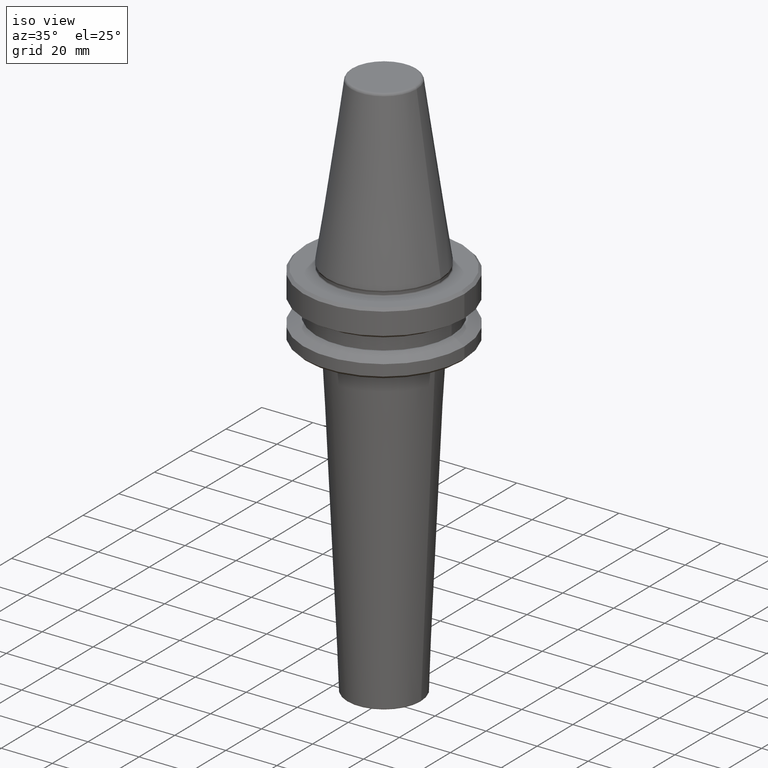
[diagram: clean part render]
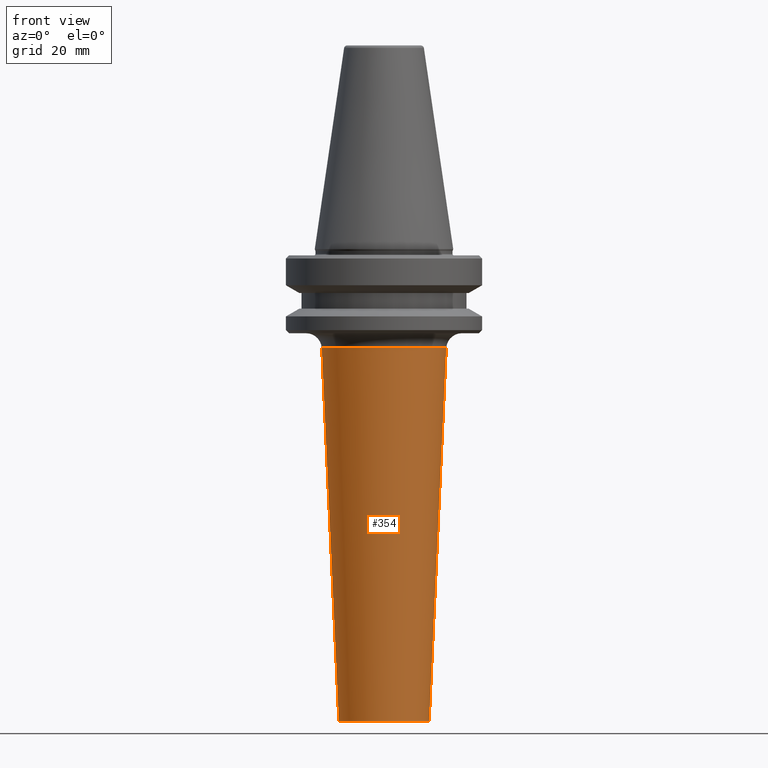
[diagram: tour spotlight — one face highlighted and labeled with its STEP entity id]
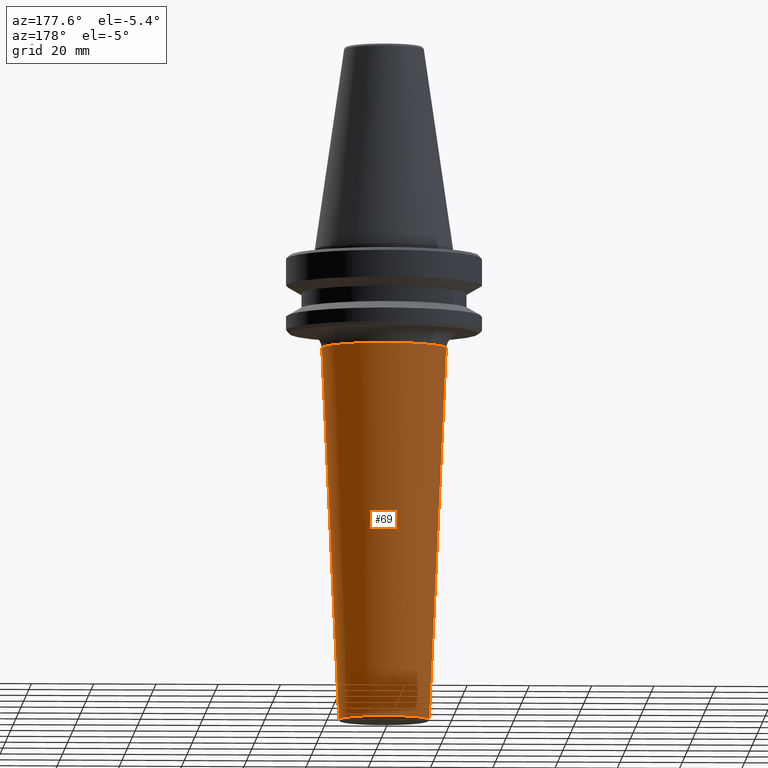
[diagram: tour spotlight — one face highlighted and labeled with its STEP entity id]
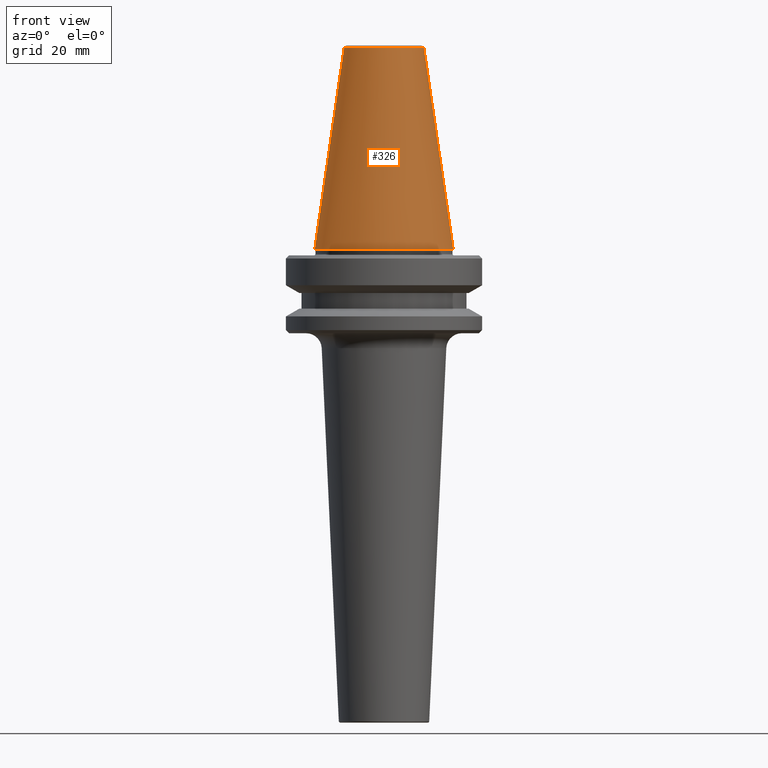
[diagram: tour spotlight — one face highlighted and labeled with its STEP entity id]
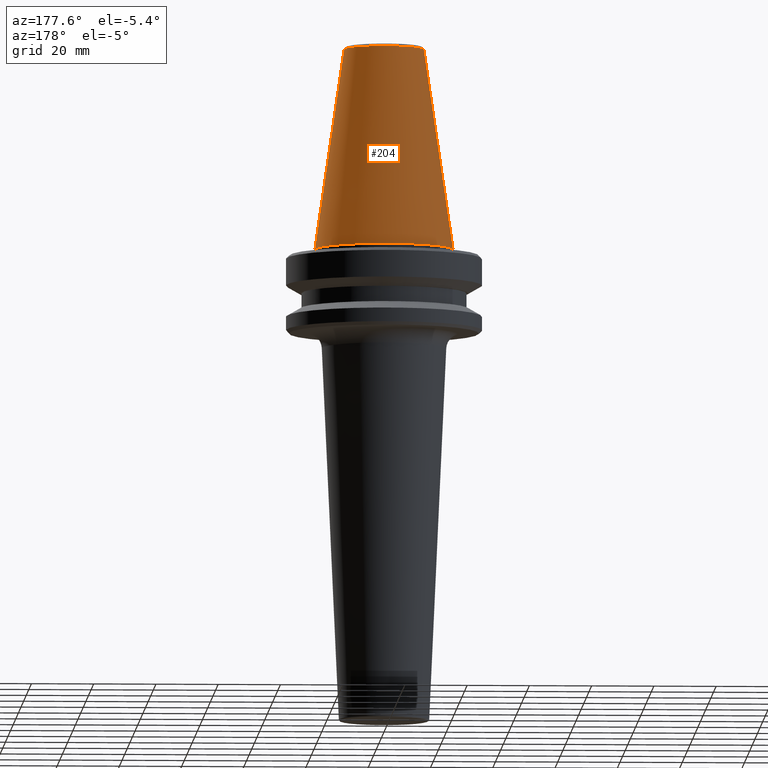
[diagram: tour spotlight — one face highlighted and labeled with its STEP entity id]
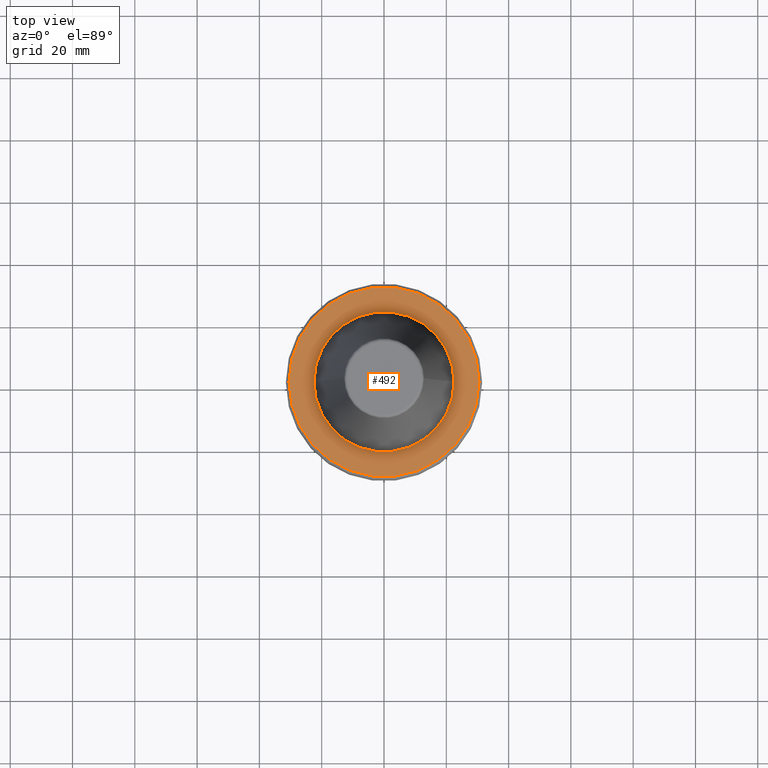
[diagram: tour spotlight — one face highlighted and labeled with its STEP entity id]
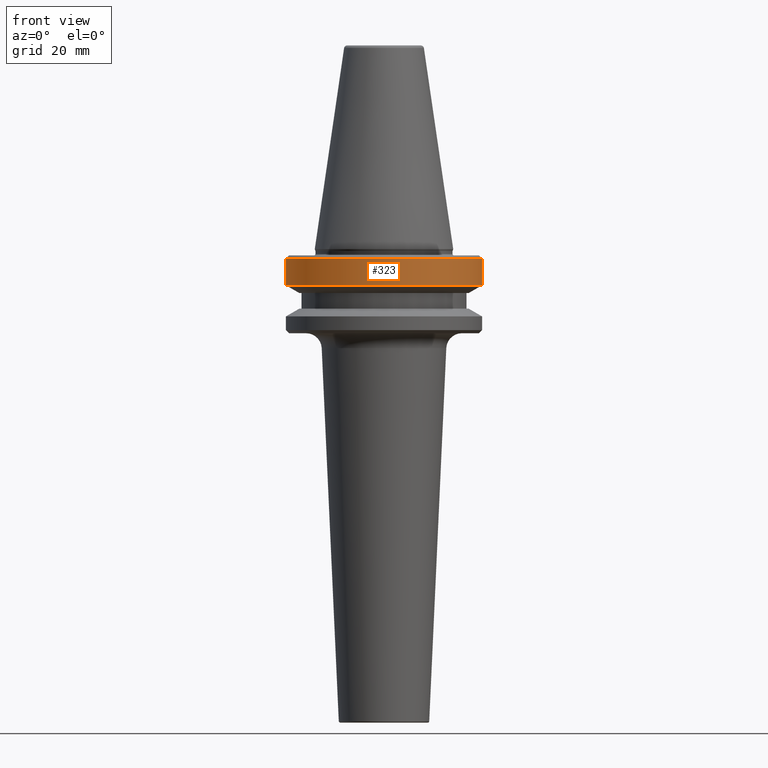
[diagram: tour spotlight — one face highlighted and labeled with its STEP entity id]
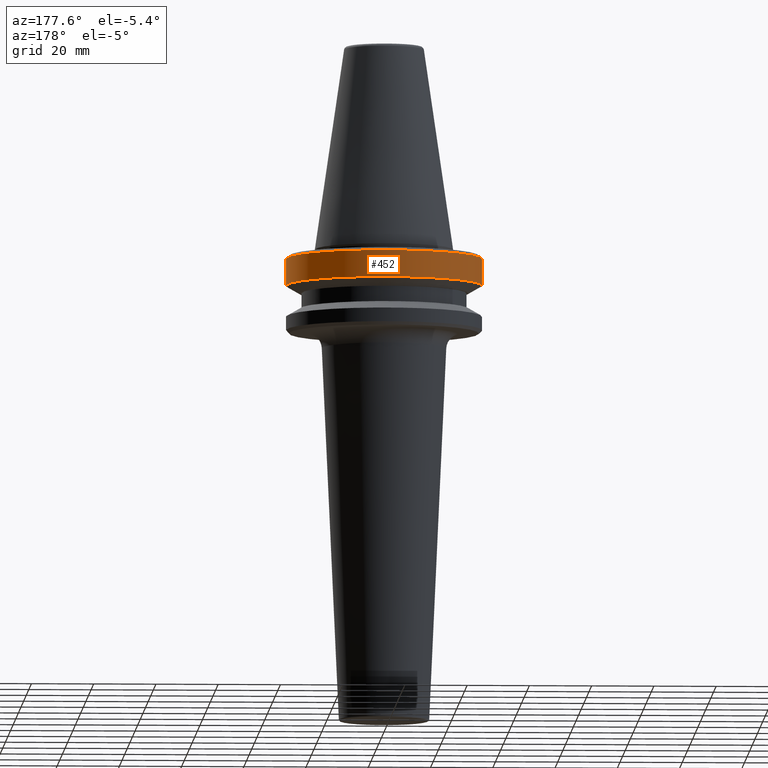
[diagram: tour spotlight — one face highlighted and labeled with its STEP entity id]
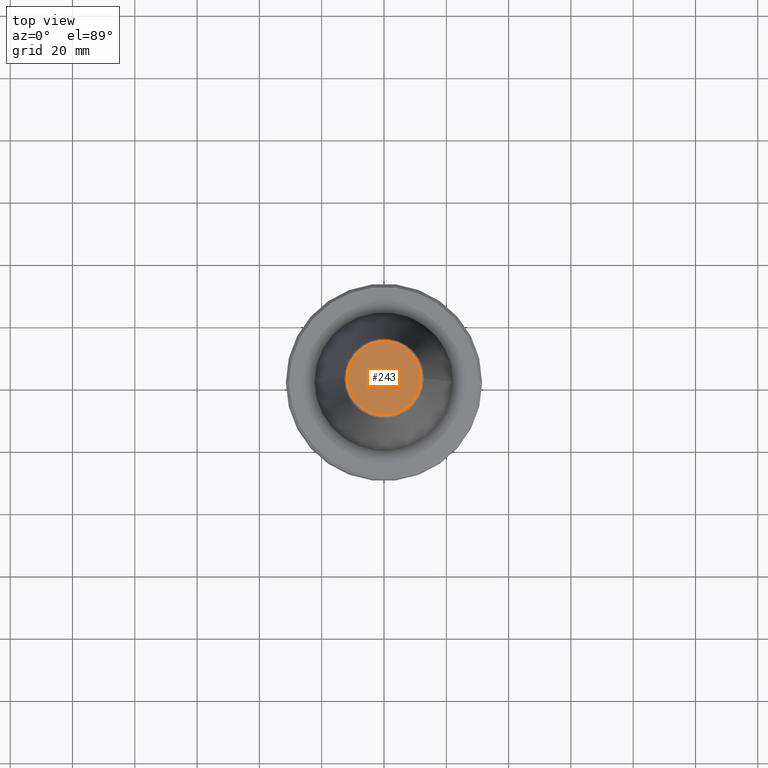
[diagram: tour spotlight — one face highlighted and labeled with its STEP entity id]
A machine part: a face-by-face anatomy tour. The part has 38 B-rep faces; the first image is the clean iso view, then the 8 largest visible faces are spotlighted one at a time (largest first), each with its STEP entity span.

Face 1 — front view, entity #354. In plain terms, the highlighted conical surface has half-angle 2.619 deg.
Definition (entity closure, byte-faithful):
#6 = CONICAL_SURFACE ( 'NONE', #387, 20.00000000000000400, 0.04571435657293276100 ) ;
#29 = EDGE_CURVE ( 'NONE', #379, #769, #158, .T. ) ;
#68 = LINE ( 'NONE', #947, #705 ) ;
#124 = AXIS2_PLACEMENT_3D ( 'NONE', #302, #866, #386 ) ;
#158 = LINE ( 'NONE', #557, #993 ) ;
#167 = EDGE_CURVE ( 'NONE', #769, #469, #745, .T. ) ;
#261 = CARTESIAN_POINT ( 'NONE',  ( -14.52182784840496200, 1.778410999231803200E-015, -216.9228492179622700 ) ) ;
#276 = EDGE_CURVE ( 'NONE', #379, #844, #339, .T. ) ;
#302 = CARTESIAN_POINT ( 'NONE',  ( 0.0000000000000000000, 0.0000000000000000000, -97.17150782046840600 ) ) ;
#339 = CIRCLE ( 'NONE', #1044, 14.52182784840495500 ) ;
#341 = CARTESIAN_POINT ( 'NONE',  ( 0.0000000000000000000, 0.0000000000000000000, -97.17150782046840600 ) ) ;
#354 = ADVANCED_FACE ( 'NONE', ( #694 ), #6, .T. ) ;
#379 = VERTEX_POINT ( 'NONE', #261 ) ;
#386 = DIRECTION ( 'NONE',  ( 1.000000000000000000, 0.0000000000000000000, 0.0000000000000000000 ) ) ;
#387 = AXIS2_PLACEMENT_3D ( 'NONE', #341, #458, #666 ) ;
#388 = DIRECTION ( 'NONE',  ( -0.0000000000000000000, -0.0000000000000000000, 1.000000000000000000 ) ) ;
#397 = DIRECTION ( 'NONE',  ( 0.04569843590791970700, 0.0000000000000000000, 0.9989552807586381500 ) ) ;
#458 = DIRECTION ( 'NONE',  ( -0.0000000000000000000, -0.0000000000000000000, 1.000000000000000000 ) ) ;
#459 = EDGE_LOOP ( 'NONE', ( #466, #823, #991, #704 ) ) ;
#466 = ORIENTED_EDGE ( 'NONE', *, *, #29, .F. ) ;
#469 = VERTEX_POINT ( 'NONE', #729 ) ;
#546 = CARTESIAN_POINT ( 'NONE',  ( -20.00000000000000400, 2.755135445062810000E-015, -97.17150782046840600 ) ) ;
#557 = CARTESIAN_POINT ( 'NONE',  ( -20.00000000000000400, 2.449293598294706900E-015, -97.17150782046840600 ) ) ;
#666 = DIRECTION ( 'NONE',  ( 1.000000000000000000, 0.0000000000000000000, 0.0000000000000000000 ) ) ;
#694 = FACE_OUTER_BOUND ( 'NONE', #459, .T. ) ;
#704 = ORIENTED_EDGE ( 'NONE', *, *, #167, .F. ) ;
#705 = VECTOR ( 'NONE', #397, 1000.000000000000100 ) ;
#707 = EDGE_CURVE ( 'NONE', #844, #469, #68, .T. ) ;
#729 = CARTESIAN_POINT ( 'NONE',  ( 20.00000000000000400, 0.0000000000000000000, -97.17150782046840600 ) ) ;
#745 = CIRCLE ( 'NONE', #124, 20.00000000000000400 ) ;
#750 = CARTESIAN_POINT ( 'NONE',  ( 14.52182784840496200, 0.0000000000000000000, -216.9228492179622700 ) ) ;
#769 = VERTEX_POINT ( 'NONE', #546 ) ;
#823 = ORIENTED_EDGE ( 'NONE', *, *, #276, .T. ) ;
#844 = VERTEX_POINT ( 'NONE', #750 ) ;
#866 = DIRECTION ( 'NONE',  ( -0.0000000000000000000, -0.0000000000000000000, 1.000000000000000000 ) ) ;
#867 = CARTESIAN_POINT ( 'NONE',  ( 0.0000000000000000000, 0.0000000000000000000, -216.9228492179622700 ) ) ;
#878 = DIRECTION ( 'NONE',  ( -0.04569843590791970700, 5.596444326067432800E-018, 0.9989552807586381500 ) ) ;
#940 = DIRECTION ( 'NONE',  ( 1.000000000000000000, 0.0000000000000000000, 0.0000000000000000000 ) ) ;
#947 = CARTESIAN_POINT ( 'NONE',  ( 20.00000000000000400, 0.0000000000000000000, -97.17150782046840600 ) ) ;
#991 = ORIENTED_EDGE ( 'NONE', *, *, #707, .T. ) ;
#993 = VECTOR ( 'NONE', #878, 1000.000000000000100 ) ;
#1044 = AXIS2_PLACEMENT_3D ( 'NONE', #867, #388, #940 ) ;

Face 2 — auxiliary view, entity #69. In plain terms, the highlighted conical surface has half-angle 2.619 deg.
Definition (entity closure, byte-faithful):
#16 = CARTESIAN_POINT ( 'NONE',  ( 0.0000000000000000000, 0.0000000000000000000, -216.9228492179622700 ) ) ;
#29 = EDGE_CURVE ( 'NONE', #379, #769, #158, .T. ) ;
#68 = LINE ( 'NONE', #947, #705 ) ;
#69 = ADVANCED_FACE ( 'NONE', ( #768 ), #739, .T. ) ;
#92 = EDGE_CURVE ( 'NONE', #469, #769, #939, .T. ) ;
#102 = DIRECTION ( 'NONE',  ( 1.000000000000000000, 0.0000000000000000000, 0.0000000000000000000 ) ) ;
#137 = ORIENTED_EDGE ( 'NONE', *, *, #572, .T. ) ;
#158 = LINE ( 'NONE', #557, #993 ) ;
#261 = CARTESIAN_POINT ( 'NONE',  ( -14.52182784840496200, 1.778410999231803200E-015, -216.9228492179622700 ) ) ;
#279 = EDGE_LOOP ( 'NONE', ( #137, #600, #808, #766 ) ) ;
#282 = DIRECTION ( 'NONE',  ( -0.0000000000000000000, -0.0000000000000000000, 1.000000000000000000 ) ) ;
#379 = VERTEX_POINT ( 'NONE', #261 ) ;
#397 = DIRECTION ( 'NONE',  ( 0.04569843590791970700, 0.0000000000000000000, 0.9989552807586381500 ) ) ;
#469 = VERTEX_POINT ( 'NONE', #729 ) ;
#477 = CARTESIAN_POINT ( 'NONE',  ( 0.0000000000000000000, 0.0000000000000000000, -97.17150782046840600 ) ) ;
#533 = AXIS2_PLACEMENT_3D ( 'NONE', #477, #1031, #554 ) ;
#546 = CARTESIAN_POINT ( 'NONE',  ( -20.00000000000000400, 2.755135445062810000E-015, -97.17150782046840600 ) ) ;
#554 = DIRECTION ( 'NONE',  ( 1.000000000000000000, 0.0000000000000000000, 0.0000000000000000000 ) ) ;
#557 = CARTESIAN_POINT ( 'NONE',  ( -20.00000000000000400, 2.449293598294706900E-015, -97.17150782046840600 ) ) ;
#572 = EDGE_CURVE ( 'NONE', #844, #379, #959, .T. ) ;
#600 = ORIENTED_EDGE ( 'NONE', *, *, #29, .T. ) ;
#602 = DIRECTION ( 'NONE',  ( -0.0000000000000000000, -0.0000000000000000000, 1.000000000000000000 ) ) ;
#705 = VECTOR ( 'NONE', #397, 1000.000000000000100 ) ;
#707 = EDGE_CURVE ( 'NONE', #844, #469, #68, .T. ) ;
#729 = CARTESIAN_POINT ( 'NONE',  ( 20.00000000000000400, 0.0000000000000000000, -97.17150782046840600 ) ) ;
#739 = CONICAL_SURFACE ( 'NONE', #533, 20.00000000000000400, 0.04571435657293276100 ) ;
#750 = CARTESIAN_POINT ( 'NONE',  ( 14.52182784840496200, 0.0000000000000000000, -216.9228492179622700 ) ) ;
#766 = ORIENTED_EDGE ( 'NONE', *, *, #707, .F. ) ;
#768 = FACE_OUTER_BOUND ( 'NONE', #279, .T. ) ;
#769 = VERTEX_POINT ( 'NONE', #546 ) ;
#771 = CARTESIAN_POINT ( 'NONE',  ( 0.0000000000000000000, 0.0000000000000000000, -97.17150782046840600 ) ) ;
#806 = AXIS2_PLACEMENT_3D ( 'NONE', #771, #282, #847 ) ;
#808 = ORIENTED_EDGE ( 'NONE', *, *, #92, .F. ) ;
#844 = VERTEX_POINT ( 'NONE', #750 ) ;
#847 = DIRECTION ( 'NONE',  ( 1.000000000000000000, 0.0000000000000000000, 0.0000000000000000000 ) ) ;
#878 = DIRECTION ( 'NONE',  ( -0.04569843590791970700, 5.596444326067432800E-018, 0.9989552807586381500 ) ) ;
#939 = CIRCLE ( 'NONE', #806, 20.00000000000000400 ) ;
#947 = CARTESIAN_POINT ( 'NONE',  ( 20.00000000000000400, 0.0000000000000000000, -97.17150782046840600 ) ) ;
#955 = AXIS2_PLACEMENT_3D ( 'NONE', #16, #602, #102 ) ;
#959 = CIRCLE ( 'NONE', #955, 14.52182784840495500 ) ;
#993 = VECTOR ( 'NONE', #878, 1000.000000000000100 ) ;
#1031 = DIRECTION ( 'NONE',  ( -0.0000000000000000000, -0.0000000000000000000, 1.000000000000000000 ) ) ;

Face 3 — front view, entity #326. In plain terms, the highlighted conical surface has half-angle 8.297 deg.
Definition (entity closure, byte-faithful):
#10 = CARTESIAN_POINT ( 'NONE',  ( 12.81220206925736900, 2.145409868259749100E-015, -0.8556918111122247000 ) ) ;
#15 = VECTOR ( 'NONE', #395, 1000.000000000000000 ) ;
#18 = EDGE_LOOP ( 'NONE', ( #398, #620, #79, #153 ) ) ;
#31 = CONICAL_SURFACE ( 'NONE', #281, 12.81220206925736900, 0.1448138077623198300 ) ;
#37 = VERTEX_POINT ( 'NONE', #658 ) ;
#51 = DIRECTION ( 'NONE',  ( -0.0000000000000000000, -0.0000000000000000000, 1.000000000000000000 ) ) ;
#53 = EDGE_CURVE ( 'NONE', #212, #382, #362, .T. ) ;
#79 = ORIENTED_EDGE ( 'NONE', *, *, #197, .T. ) ;
#115 = FACE_OUTER_BOUND ( 'NONE', #18, .T. ) ;
#153 = ORIENTED_EDGE ( 'NONE', *, *, #807, .T. ) ;
#164 = CARTESIAN_POINT ( 'NONE',  ( -12.81220206925736900, 0.0000000000000000000, -0.8556918111122247000 ) ) ;
#197 = EDGE_CURVE ( 'NONE', #37, #659, #861, .T. ) ;
#212 = VERTEX_POINT ( 'NONE', #10 ) ;
#214 = EDGE_CURVE ( 'NONE', #37, #212, #684, .T. ) ;
#270 = CARTESIAN_POINT ( 'NONE',  ( 0.0000000000000000000, 0.0000000000000000000, -0.8556918111122247000 ) ) ;
#281 = AXIS2_PLACEMENT_3D ( 'NONE', #777, #851, #923 ) ;
#326 = ADVANCED_FACE ( 'NONE', ( #115 ), #31, .T. ) ;
#344 = CARTESIAN_POINT ( 'NONE',  ( 22.22499999999993700, 0.0000000000000000000, -65.40000000000057400 ) ) ;
#355 = DIRECTION ( 'NONE',  ( 1.000000000000000000, 0.0000000000000000000, 0.0000000000000000000 ) ) ;
#362 = LINE ( 'NONE', #698, #967 ) ;
#382 = VERTEX_POINT ( 'NONE', #344 ) ;
#395 = DIRECTION ( 'NONE',  ( -0.1443081888881795900, 0.0000000000000000000, -0.9895327920891826600 ) ) ;
#398 = ORIENTED_EDGE ( 'NONE', *, *, #53, .F. ) ;
#411 = AXIS2_PLACEMENT_3D ( 'NONE', #270, #838, #355 ) ;
#555 = CARTESIAN_POINT ( 'NONE',  ( 0.0000000000000000000, 0.0000000000000000000, -65.40000000000057400 ) ) ;
#619 = DIRECTION ( 'NONE',  ( 0.1443081888881795900, 1.767265616126607700E-017, -0.9895327920891826600 ) ) ;
#620 = ORIENTED_EDGE ( 'NONE', *, *, #214, .F. ) ;
#636 = CARTESIAN_POINT ( 'NONE',  ( -22.22499999999993700, 2.721777511104985000E-015, -65.40000000000057400 ) ) ;
#641 = DIRECTION ( 'NONE',  ( 1.000000000000000000, 0.0000000000000000000, 0.0000000000000000000 ) ) ;
#658 = CARTESIAN_POINT ( 'NONE',  ( -12.81220206925736900, 0.0000000000000000000, -0.8556918111122247000 ) ) ;
#659 = VERTEX_POINT ( 'NONE', #636 ) ;
#660 = CIRCLE ( 'NONE', #836, 22.22499999999993700 ) ;
#684 = CIRCLE ( 'NONE', #411, 12.81220206925736900 ) ;
#698 = CARTESIAN_POINT ( 'NONE',  ( 12.81220206925736900, 1.569042225414513200E-015, -0.8556918111122247000 ) ) ;
#777 = CARTESIAN_POINT ( 'NONE',  ( 0.0000000000000000000, 0.0000000000000000000, -0.8556918111122247000 ) ) ;
#807 = EDGE_CURVE ( 'NONE', #659, #382, #660, .T. ) ;
#836 = AXIS2_PLACEMENT_3D ( 'NONE', #555, #51, #641 ) ;
#838 = DIRECTION ( 'NONE',  ( -0.0000000000000000000, -0.0000000000000000000, 1.000000000000000000 ) ) ;
#851 = DIRECTION ( 'NONE',  ( 0.0000000000000000000, 0.0000000000000000000, -1.000000000000000000 ) ) ;
#861 = LINE ( 'NONE', #164, #15 ) ;
#923 = DIRECTION ( 'NONE',  ( -1.000000000000000000, 0.0000000000000000000, 0.0000000000000000000 ) ) ;
#967 = VECTOR ( 'NONE', #619, 1000.000000000000000 ) ;

Face 4 — auxiliary view, entity #204. In plain terms, the highlighted conical surface has half-angle 8.297 deg.
Definition (entity closure, byte-faithful):
#10 = CARTESIAN_POINT ( 'NONE',  ( 12.81220206925736900, 2.145409868259749100E-015, -0.8556918111122247000 ) ) ;
#15 = VECTOR ( 'NONE', #395, 1000.000000000000000 ) ;
#26 = CARTESIAN_POINT ( 'NONE',  ( 0.0000000000000000000, 0.0000000000000000000, -0.8556918111122247000 ) ) ;
#37 = VERTEX_POINT ( 'NONE', #658 ) ;
#53 = EDGE_CURVE ( 'NONE', #212, #382, #362, .T. ) ;
#117 = DIRECTION ( 'NONE',  ( 1.000000000000000000, 0.0000000000000000000, 0.0000000000000000000 ) ) ;
#164 = CARTESIAN_POINT ( 'NONE',  ( -12.81220206925736900, 0.0000000000000000000, -0.8556918111122247000 ) ) ;
#197 = EDGE_CURVE ( 'NONE', #37, #659, #861, .T. ) ;
#204 = ADVANCED_FACE ( 'NONE', ( #888 ), #418, .T. ) ;
#212 = VERTEX_POINT ( 'NONE', #10 ) ;
#221 = CARTESIAN_POINT ( 'NONE',  ( 0.0000000000000000000, 0.0000000000000000000, -65.40000000000057400 ) ) ;
#237 = AXIS2_PLACEMENT_3D ( 'NONE', #221, #792, #306 ) ;
#246 = EDGE_CURVE ( 'NONE', #212, #37, #604, .T. ) ;
#291 = ORIENTED_EDGE ( 'NONE', *, *, #623, .T. ) ;
#306 = DIRECTION ( 'NONE',  ( 1.000000000000000000, 0.0000000000000000000, 0.0000000000000000000 ) ) ;
#344 = CARTESIAN_POINT ( 'NONE',  ( 22.22499999999993700, 0.0000000000000000000, -65.40000000000057400 ) ) ;
#357 = AXIS2_PLACEMENT_3D ( 'NONE', #943, #872, #709 ) ;
#362 = LINE ( 'NONE', #698, #967 ) ;
#382 = VERTEX_POINT ( 'NONE', #344 ) ;
#395 = DIRECTION ( 'NONE',  ( -0.1443081888881795900, 0.0000000000000000000, -0.9895327920891826600 ) ) ;
#418 = CONICAL_SURFACE ( 'NONE', #357, 12.81220206925736900, 0.1448138077623198300 ) ;
#525 = ORIENTED_EDGE ( 'NONE', *, *, #246, .F. ) ;
#541 = CIRCLE ( 'NONE', #237, 22.22499999999993700 ) ;
#604 = CIRCLE ( 'NONE', #624, 12.81220206925736900 ) ;
#614 = DIRECTION ( 'NONE',  ( -0.0000000000000000000, -0.0000000000000000000, 1.000000000000000000 ) ) ;
#619 = DIRECTION ( 'NONE',  ( 0.1443081888881795900, 1.767265616126607700E-017, -0.9895327920891826600 ) ) ;
#623 = EDGE_CURVE ( 'NONE', #382, #659, #541, .T. ) ;
#624 = AXIS2_PLACEMENT_3D ( 'NONE', #26, #614, #117 ) ;
#636 = CARTESIAN_POINT ( 'NONE',  ( -22.22499999999993700, 2.721777511104985000E-015, -65.40000000000057400 ) ) ;
#658 = CARTESIAN_POINT ( 'NONE',  ( -12.81220206925736900, 0.0000000000000000000, -0.8556918111122247000 ) ) ;
#659 = VERTEX_POINT ( 'NONE', #636 ) ;
#698 = CARTESIAN_POINT ( 'NONE',  ( 12.81220206925736900, 1.569042225414513200E-015, -0.8556918111122247000 ) ) ;
#709 = DIRECTION ( 'NONE',  ( -1.000000000000000000, 0.0000000000000000000, 0.0000000000000000000 ) ) ;
#792 = DIRECTION ( 'NONE',  ( -0.0000000000000000000, -0.0000000000000000000, 1.000000000000000000 ) ) ;
#794 = ORIENTED_EDGE ( 'NONE', *, *, #53, .T. ) ;
#819 = ORIENTED_EDGE ( 'NONE', *, *, #197, .F. ) ;
#855 = EDGE_LOOP ( 'NONE', ( #525, #794, #291, #819 ) ) ;
#861 = LINE ( 'NONE', #164, #15 ) ;
#872 = DIRECTION ( 'NONE',  ( 0.0000000000000000000, 0.0000000000000000000, -1.000000000000000000 ) ) ;
#888 = FACE_OUTER_BOUND ( 'NONE', #855, .T. ) ;
#943 = CARTESIAN_POINT ( 'NONE',  ( 0.0000000000000000000, 0.0000000000000000000, -0.8556918111122247000 ) ) ;
#967 = VECTOR ( 'NONE', #619, 1000.000000000000000 ) ;

Face 5 — top view, entity #492. In plain terms, the highlighted planar face has unit normal (0, 0, -1).
Definition (entity closure, byte-faithful):
#14 = DIRECTION ( 'NONE',  ( 1.000000000000000000, 0.0000000000000000000, 0.0000000000000000000 ) ) ;
#32 = DIRECTION ( 'NONE',  ( 1.000000000000000000, 0.0000000000000000000, 0.0000000000000000000 ) ) ;
#35 = EDGE_CURVE ( 'NONE', #1011, #626, #574, .T. ) ;
#154 = DIRECTION ( 'NONE',  ( 0.0000000000000000000, 0.0000000000000000000, -1.000000000000000000 ) ) ;
#157 = CARTESIAN_POINT ( 'NONE',  ( -22.49999999999996400, 2.755455298081540400E-015, -67.40000000000034700 ) ) ;
#166 = EDGE_LOOP ( 'NONE', ( #286, #841 ) ) ;
#187 = DIRECTION ( 'NONE',  ( -0.0000000000000000000, -0.0000000000000000000, 1.000000000000000000 ) ) ;
#196 = VERTEX_POINT ( 'NONE', #222 ) ;
#206 = ORIENTED_EDGE ( 'NONE', *, *, #1033, .T. ) ;
#208 = FACE_OUTER_BOUND ( 'NONE', #293, .T. ) ;
#213 = AXIS2_PLACEMENT_3D ( 'NONE', #403, #954, #480 ) ;
#216 = CIRCLE ( 'NONE', #467, 22.49999999999996400 ) ;
#222 = CARTESIAN_POINT ( 'NONE',  ( -30.49999999999997200, 0.0000000000000000000, -67.40000000000034700 ) ) ;
#227 = EDGE_CURVE ( 'NONE', #626, #1011, #216, .T. ) ;
#228 = EDGE_CURVE ( 'NONE', #716, #196, #628, .T. ) ;
#229 = CARTESIAN_POINT ( 'NONE',  ( 22.49999999999996400, 0.0000000000000000000, -67.40000000000034700 ) ) ;
#286 = ORIENTED_EDGE ( 'NONE', *, *, #35, .F. ) ;
#293 = EDGE_LOOP ( 'NONE', ( #206, #956 ) ) ;
#297 = CIRCLE ( 'NONE', #213, 30.49999999999997200 ) ;
#403 = CARTESIAN_POINT ( 'NONE',  ( 0.0000000000000000000, 0.0000000000000000000, -67.40000000000034700 ) ) ;
#435 = FACE_BOUND ( 'NONE', #166, .T. ) ;
#436 = AXIS2_PLACEMENT_3D ( 'NONE', #1010, #534, #32 ) ;
#467 = AXIS2_PLACEMENT_3D ( 'NONE', #990, #512, #14 ) ;
#480 = DIRECTION ( 'NONE',  ( 1.000000000000000000, 0.0000000000000000000, 0.0000000000000000000 ) ) ;
#492 = ADVANCED_FACE ( 'NONE', ( #435, #208 ), #885, .F. ) ;
#512 = DIRECTION ( 'NONE',  ( -0.0000000000000000000, -0.0000000000000000000, 1.000000000000000000 ) ) ;
#515 = AXIS2_PLACEMENT_3D ( 'NONE', #682, #187, #610 ) ;
#534 = DIRECTION ( 'NONE',  ( -0.0000000000000000000, -0.0000000000000000000, 1.000000000000000000 ) ) ;
#574 = CIRCLE ( 'NONE', #436, 22.49999999999996400 ) ;
#586 = AXIS2_PLACEMENT_3D ( 'NONE', #1040, #154, #732 ) ;
#610 = DIRECTION ( 'NONE',  ( 1.000000000000000000, 0.0000000000000000000, 0.0000000000000000000 ) ) ;
#626 = VERTEX_POINT ( 'NONE', #157 ) ;
#628 = CIRCLE ( 'NONE', #515, 30.49999999999997200 ) ;
#682 = CARTESIAN_POINT ( 'NONE',  ( 0.0000000000000000000, 0.0000000000000000000, -67.40000000000034700 ) ) ;
#716 = VERTEX_POINT ( 'NONE', #717 ) ;
#717 = CARTESIAN_POINT ( 'NONE',  ( 30.49999999999997200, 3.796405077356798300E-015, -67.40000000000034700 ) ) ;
#732 = DIRECTION ( 'NONE',  ( -1.000000000000000000, 0.0000000000000000000, -0.0000000000000000000 ) ) ;
#841 = ORIENTED_EDGE ( 'NONE', *, *, #227, .F. ) ;
#885 = PLANE ( 'NONE',  #586 ) ;
#954 = DIRECTION ( 'NONE',  ( -0.0000000000000000000, -0.0000000000000000000, 1.000000000000000000 ) ) ;
#956 = ORIENTED_EDGE ( 'NONE', *, *, #228, .T. ) ;
#990 = CARTESIAN_POINT ( 'NONE',  ( 0.0000000000000000000, 0.0000000000000000000, -67.40000000000034700 ) ) ;
#1010 = CARTESIAN_POINT ( 'NONE',  ( 0.0000000000000000000, 0.0000000000000000000, -67.40000000000034700 ) ) ;
#1011 = VERTEX_POINT ( 'NONE', #229 ) ;
#1033 = EDGE_CURVE ( 'NONE', #196, #716, #297, .T. ) ;
#1040 = CARTESIAN_POINT ( 'NONE',  ( 0.0000000000000000000, 0.0000000000000000000, -67.40000000000034700 ) ) ;

Face 6 — front view, entity #323. In plain terms, the highlighted cylindrical surface (partial cylindrical patch) has radius 31.5 mm, axis along (-0, -0, 1).
Definition (entity closure, byte-faithful):
#12 = EDGE_CURVE ( 'NONE', #82, #119, #267, .T. ) ;
#28 = EDGE_CURVE ( 'NONE', #891, #82, #483, .T. ) ;
#44 = CARTESIAN_POINT ( 'NONE',  ( 0.0000000000000000000, 0.0000000000000000000, 6.357346922996331500 ) ) ;
#80 = DIRECTION ( 'NONE',  ( -0.0000000000000000000, -0.0000000000000000000, 1.000000000000000000 ) ) ;
#82 = VERTEX_POINT ( 'NONE', #465 ) ;
#90 = DIRECTION ( 'NONE',  ( -0.0000000000000000000, -0.0000000000000000000, 1.000000000000000000 ) ) ;
#105 = CARTESIAN_POINT ( 'NONE',  ( 31.50000000000008500, 0.0000000000000000000, -68.40000000000046000 ) ) ;
#119 = VERTEX_POINT ( 'NONE', #105 ) ;
#122 = ORIENTED_EDGE ( 'NONE', *, *, #28, .T. ) ;
#198 = CIRCLE ( 'NONE', #1041, 31.50000000000008500 ) ;
#202 = DIRECTION ( 'NONE',  ( 1.000000000000000000, 0.0000000000000000000, 0.0000000000000000000 ) ) ;
#230 = DIRECTION ( 'NONE',  ( -0.0000000000000000000, -0.0000000000000000000, 1.000000000000000000 ) ) ;
#231 = DIRECTION ( 'NONE',  ( -0.0000000000000000000, -0.0000000000000000000, 1.000000000000000000 ) ) ;
#267 = LINE ( 'NONE', #719, #1028 ) ;
#315 = CARTESIAN_POINT ( 'NONE',  ( -31.50000000000008500, 3.857637417314172900E-015, -68.40000000000046000 ) ) ;
#323 = ADVANCED_FACE ( 'NONE', ( #504 ), #904, .T. ) ;
#330 = AXIS2_PLACEMENT_3D ( 'NONE', #44, #689, #202 ) ;
#376 = AXIS2_PLACEMENT_3D ( 'NONE', #720, #231, #802 ) ;
#428 = CARTESIAN_POINT ( 'NONE',  ( -31.50000000000008500, 3.857637417314172900E-015, 6.357346922996331500 ) ) ;
#465 = CARTESIAN_POINT ( 'NONE',  ( 31.50000000000008500, 0.0000000000000000000, -76.99985799368391800 ) ) ;
#471 = VECTOR ( 'NONE', #80, 1000.000000000000000 ) ;
#481 = ORIENTED_EDGE ( 'NONE', *, *, #12, .T. ) ;
#483 = CIRCLE ( 'NONE', #376, 31.50000000000008500 ) ;
#504 = FACE_OUTER_BOUND ( 'NONE', #911, .T. ) ;
#592 = CARTESIAN_POINT ( 'NONE',  ( 0.0000000000000000000, 0.0000000000000000000, -68.40000000000046000 ) ) ;
#675 = CARTESIAN_POINT ( 'NONE',  ( -31.50000000000008500, 3.857637417314172900E-015, -76.99985799368391800 ) ) ;
#678 = DIRECTION ( 'NONE',  ( 1.000000000000000000, 0.0000000000000000000, 0.0000000000000000000 ) ) ;
#689 = DIRECTION ( 'NONE',  ( -0.0000000000000000000, -0.0000000000000000000, 1.000000000000000000 ) ) ;
#719 = CARTESIAN_POINT ( 'NONE',  ( 31.50000000000008500, 0.0000000000000000000, 6.357346922996331500 ) ) ;
#720 = CARTESIAN_POINT ( 'NONE',  ( 0.0000000000000000000, 0.0000000000000000000, -76.99985799368391800 ) ) ;
#734 = VERTEX_POINT ( 'NONE', #315 ) ;
#802 = DIRECTION ( 'NONE',  ( 1.000000000000000000, 0.0000000000000000000, 0.0000000000000000000 ) ) ;
#828 = EDGE_CURVE ( 'NONE', #891, #734, #870, .T. ) ;
#870 = LINE ( 'NONE', #428, #471 ) ;
#891 = VERTEX_POINT ( 'NONE', #675 ) ;
#904 = CYLINDRICAL_SURFACE ( 'NONE', #330, 31.50000000000008500 ) ;
#911 = EDGE_LOOP ( 'NONE', ( #946, #122, #481, #929 ) ) ;
#926 = EDGE_CURVE ( 'NONE', #734, #119, #198, .T. ) ;
#929 = ORIENTED_EDGE ( 'NONE', *, *, #926, .F. ) ;
#946 = ORIENTED_EDGE ( 'NONE', *, *, #828, .F. ) ;
#1028 = VECTOR ( 'NONE', #230, 1000.000000000000000 ) ;
#1041 = AXIS2_PLACEMENT_3D ( 'NONE', #592, #90, #678 ) ;

Face 7 — auxiliary view, entity #452. In plain terms, the highlighted cylindrical surface (partial cylindrical patch) has radius 31.5 mm, axis along (-0, -0, 1).
Definition (entity closure, byte-faithful):
#12 = EDGE_CURVE ( 'NONE', #82, #119, #267, .T. ) ;
#33 = AXIS2_PLACEMENT_3D ( 'NONE', #909, #441, #985 ) ;
#52 = FACE_OUTER_BOUND ( 'NONE', #951, .T. ) ;
#80 = DIRECTION ( 'NONE',  ( -0.0000000000000000000, -0.0000000000000000000, 1.000000000000000000 ) ) ;
#82 = VERTEX_POINT ( 'NONE', #465 ) ;
#105 = CARTESIAN_POINT ( 'NONE',  ( 31.50000000000008500, 0.0000000000000000000, -68.40000000000046000 ) ) ;
#119 = VERTEX_POINT ( 'NONE', #105 ) ;
#123 = ORIENTED_EDGE ( 'NONE', *, *, #828, .T. ) ;
#230 = DIRECTION ( 'NONE',  ( -0.0000000000000000000, -0.0000000000000000000, 1.000000000000000000 ) ) ;
#239 = ORIENTED_EDGE ( 'NONE', *, *, #933, .F. ) ;
#250 = CIRCLE ( 'NONE', #886, 31.50000000000008500 ) ;
#254 = AXIS2_PLACEMENT_3D ( 'NONE', #969, #332, #1052 ) ;
#267 = LINE ( 'NONE', #719, #1028 ) ;
#315 = CARTESIAN_POINT ( 'NONE',  ( -31.50000000000008500, 3.857637417314172900E-015, -68.40000000000046000 ) ) ;
#316 = ORIENTED_EDGE ( 'NONE', *, *, #12, .F. ) ;
#332 = DIRECTION ( 'NONE',  ( -0.0000000000000000000, -0.0000000000000000000, 1.000000000000000000 ) ) ;
#428 = CARTESIAN_POINT ( 'NONE',  ( -31.50000000000008500, 3.857637417314172900E-015, 6.357346922996331500 ) ) ;
#441 = DIRECTION ( 'NONE',  ( -0.0000000000000000000, -0.0000000000000000000, 1.000000000000000000 ) ) ;
#452 = ADVANCED_FACE ( 'NONE', ( #52 ), #857, .T. ) ;
#465 = CARTESIAN_POINT ( 'NONE',  ( 31.50000000000008500, 0.0000000000000000000, -76.99985799368391800 ) ) ;
#471 = VECTOR ( 'NONE', #80, 1000.000000000000000 ) ;
#501 = DIRECTION ( 'NONE',  ( -0.0000000000000000000, -0.0000000000000000000, 1.000000000000000000 ) ) ;
#609 = CIRCLE ( 'NONE', #33, 31.50000000000008500 ) ;
#675 = CARTESIAN_POINT ( 'NONE',  ( -31.50000000000008500, 3.857637417314172900E-015, -76.99985799368391800 ) ) ;
#719 = CARTESIAN_POINT ( 'NONE',  ( 31.50000000000008500, 0.0000000000000000000, 6.357346922996331500 ) ) ;
#734 = VERTEX_POINT ( 'NONE', #315 ) ;
#812 = EDGE_CURVE ( 'NONE', #82, #891, #250, .T. ) ;
#828 = EDGE_CURVE ( 'NONE', #891, #734, #870, .T. ) ;
#857 = CYLINDRICAL_SURFACE ( 'NONE', #254, 31.50000000000008500 ) ;
#870 = LINE ( 'NONE', #428, #471 ) ;
#886 = AXIS2_PLACEMENT_3D ( 'NONE', #977, #501, #1055 ) ;
#891 = VERTEX_POINT ( 'NONE', #675 ) ;
#903 = ORIENTED_EDGE ( 'NONE', *, *, #812, .T. ) ;
#909 = CARTESIAN_POINT ( 'NONE',  ( 0.0000000000000000000, 0.0000000000000000000, -68.40000000000046000 ) ) ;
#933 = EDGE_CURVE ( 'NONE', #119, #734, #609, .T. ) ;
#951 = EDGE_LOOP ( 'NONE', ( #903, #123, #239, #316 ) ) ;
#969 = CARTESIAN_POINT ( 'NONE',  ( 0.0000000000000000000, 0.0000000000000000000, 6.357346922996331500 ) ) ;
#977 = CARTESIAN_POINT ( 'NONE',  ( 0.0000000000000000000, 0.0000000000000000000, -76.99985799368391800 ) ) ;
#985 = DIRECTION ( 'NONE',  ( 1.000000000000000000, 0.0000000000000000000, 0.0000000000000000000 ) ) ;
#1028 = VECTOR ( 'NONE', #230, 1000.000000000000000 ) ;
#1052 = DIRECTION ( 'NONE',  ( 1.000000000000000000, 0.0000000000000000000, 0.0000000000000000000 ) ) ;
#1055 = DIRECTION ( 'NONE',  ( 1.000000000000000000, 0.0000000000000000000, 0.0000000000000000000 ) ) ;

Face 8 — top view, entity #243. In plain terms, the highlighted planar face has unit normal (0, 0, -1).
Definition (entity closure, byte-faithful):
#4 = CIRCLE ( 'NONE', #200, 11.82266927716813000 ) ;
#20 = VERTEX_POINT ( 'NONE', #642 ) ;
#190 = FACE_OUTER_BOUND ( 'NONE', #1048, .T. ) ;
#200 = AXIS2_PLACEMENT_3D ( 'NONE', #320, #884, #406 ) ;
#201 = PLANE ( 'NONE',  #683 ) ;
#243 = ADVANCED_FACE ( 'NONE', ( #190 ), #201, .F. ) ;
#284 = DIRECTION ( 'NONE',  ( 0.0000000000000000000, 0.0000000000000000000, -1.000000000000000000 ) ) ;
#285 = CIRCLE ( 'NONE', #772, 11.82266927716813000 ) ;
#320 = CARTESIAN_POINT ( 'NONE',  ( 0.0000000000000000000, 0.0000000000000000000, -4.440892098500626200E-013 ) ) ;
#406 = DIRECTION ( 'NONE',  ( 1.000000000000000000, 0.0000000000000000000, 0.0000000000000000000 ) ) ;
#416 = EDGE_CURVE ( 'NONE', #20, #726, #285, .T. ) ;
#417 = DIRECTION ( 'NONE',  ( -0.0000000000000000000, -0.0000000000000000000, 1.000000000000000000 ) ) ;
#439 = ORIENTED_EDGE ( 'NONE', *, *, #456, .T. ) ;
#456 = EDGE_CURVE ( 'NONE', #726, #20, #4, .T. ) ;
#553 = CARTESIAN_POINT ( 'NONE',  ( 11.82266927716813000, 0.0000000000000000000, -4.440892098500626200E-013 ) ) ;
#591 = ORIENTED_EDGE ( 'NONE', *, *, #416, .T. ) ;
#642 = CARTESIAN_POINT ( 'NONE',  ( -11.82266927716813000, 1.508450817090336800E-015, -4.440892098500626200E-013 ) ) ;
#683 = AXIS2_PLACEMENT_3D ( 'NONE', #776, #284, #850 ) ;
#726 = VERTEX_POINT ( 'NONE', #553 ) ;
#751 = CARTESIAN_POINT ( 'NONE',  ( 0.0000000000000000000, 0.0000000000000000000, -4.440892098500626200E-013 ) ) ;
#772 = AXIS2_PLACEMENT_3D ( 'NONE', #751, #417, #968 ) ;
#776 = CARTESIAN_POINT ( 'NONE',  ( 0.0000000000000000000, 0.0000000000000000000, -4.440892098500626200E-013 ) ) ;
#850 = DIRECTION ( 'NONE',  ( -1.000000000000000000, 0.0000000000000000000, -0.0000000000000000000 ) ) ;
#884 = DIRECTION ( 'NONE',  ( -0.0000000000000000000, -0.0000000000000000000, 1.000000000000000000 ) ) ;
#968 = DIRECTION ( 'NONE',  ( 1.000000000000000000, 0.0000000000000000000, 0.0000000000000000000 ) ) ;
#1048 = EDGE_LOOP ( 'NONE', ( #439, #591 ) ) ;